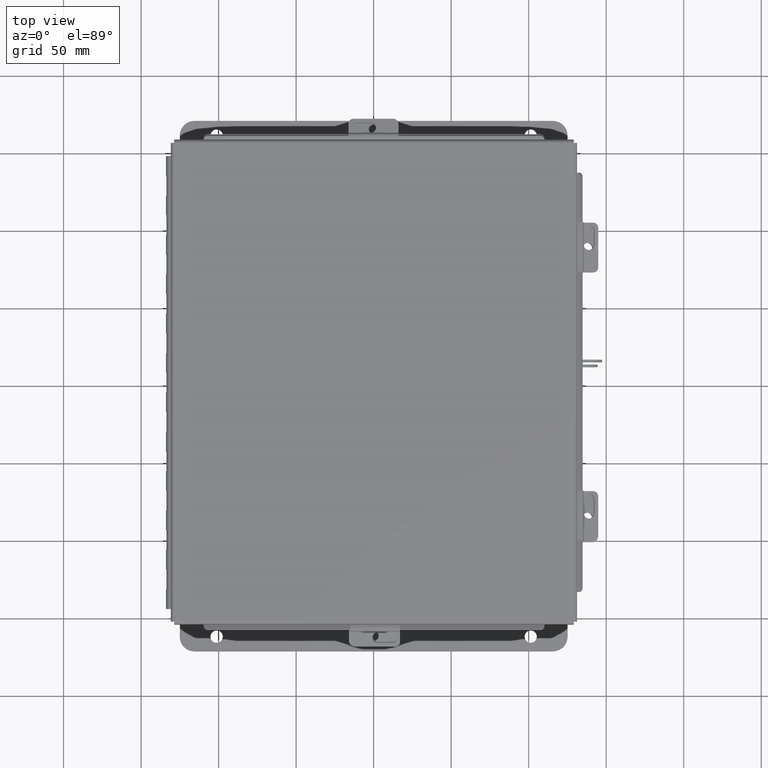
[diagram: clean part render]
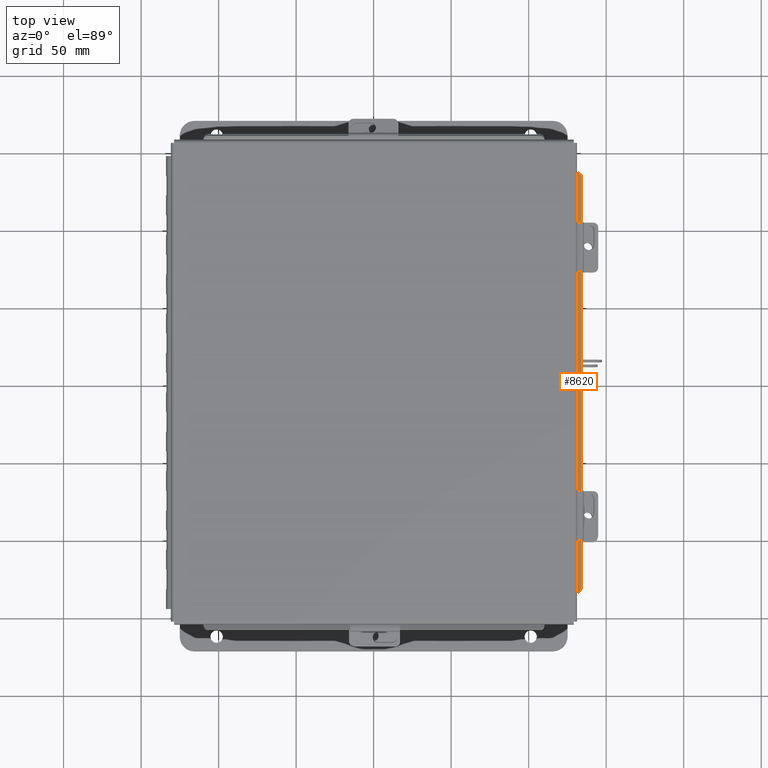
[diagram: same view with one face highlighted and labeled with its STEP entity id]
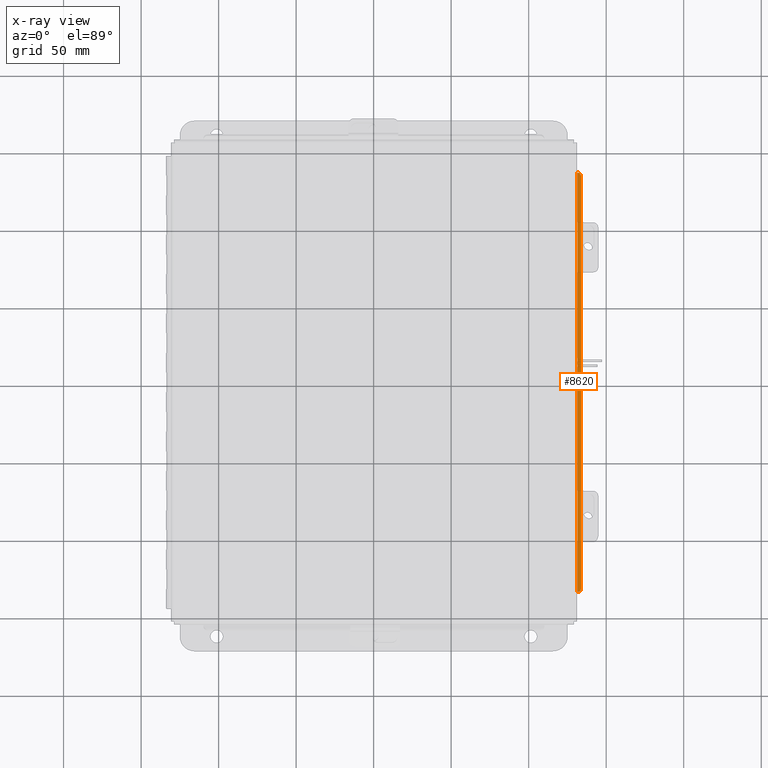
[diagram: x-ray of the same camera — body ghosted, the highlighted face saturated]
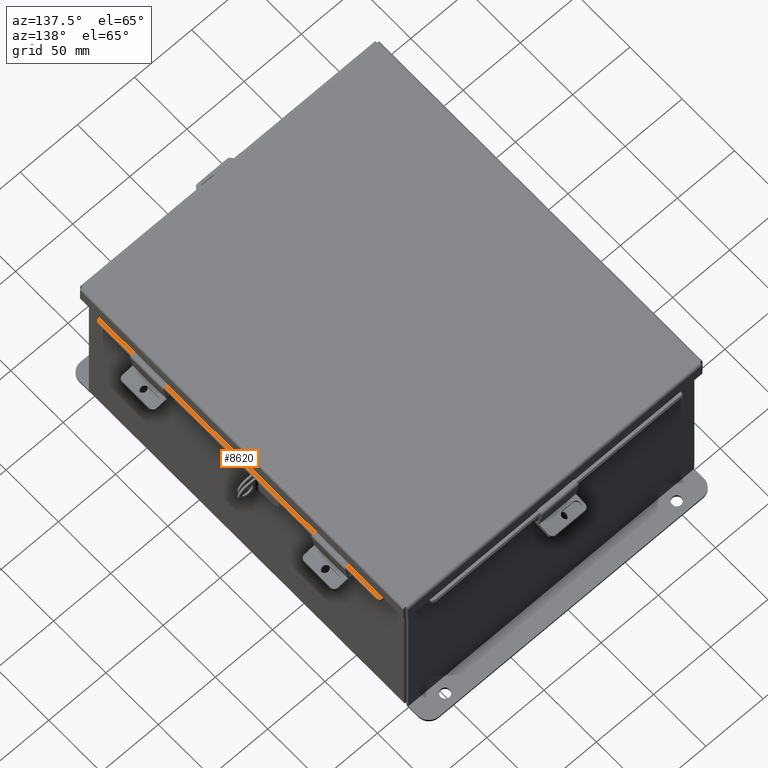
[diagram: same view with one face highlighted and labeled with its STEP entity id]
A machine part, top view. The second image highlights one B-rep face of the part: STEP entity #8620.
The next image is the same camera in x-ray: the body ghosted, the highlighted face saturated — about 0% of this face is hidden behind the body in this view.
A second angle (auxiliary view) of the same face is appended — the face is thin or edge-on in the first view.
In plain terms, the highlighted planar face has unit normal (-0.5, -0, 0.866).
Its self-contained STEP definition (entity closure, byte-faithful):
#984 = DIRECTION ( 'NONE',  ( 0.5000000000000020000, 1.972152263052529500E-031, -0.8660254037844374900 ) ) ;
#996 = EDGE_CURVE ( 'NONE', #9335, #11754, #7486, .T. ) ;
#1140 = EDGE_CURVE ( 'NONE', #15126, #11754, #5172, .T. ) ;
#1484 = DIRECTION ( 'NONE',  ( 0.5000000000000020000, 1.972152263052529500E-031, -0.8660254037844374900 ) ) ;
#1515 = VECTOR ( 'NONE', #16715, 39.37007874015748900 ) ;
#2129 = PLANE ( 'NONE',  #13989 ) ;
#2481 = AXIS2_PLACEMENT_3D ( 'NONE', #9181, #984, #10536 ) ;
#2843 = AXIS2_PLACEMENT_3D ( 'NONE', #9663, #1484, #11008 ) ;
#4133 = VECTOR ( 'NONE', #4542, 39.37007874015748100 ) ;
#4151 = CARTESIAN_POINT ( 'NONE',  ( -5.260706350946112100, 5.224478932188135100, 0.4269920976626969100 ) ) ;
#4230 = FACE_OUTER_BOUND ( 'NONE', #13836, .T. ) ;
#4542 = DIRECTION ( 'NONE',  ( 0.8660254037844374900, -1.232595164407830900E-032, 0.5000000000000020000 ) ) ;
#4658 = ORIENTED_EDGE ( 'NONE', *, *, #12526, .F. ) ;
#5078 = CARTESIAN_POINT ( 'NONE',  ( -5.169750000000002300, -5.324478932188134700, 0.4795057713659400300 ) ) ;
#5172 = LINE ( 'NONE', #12575, #1515 ) ;
#6186 = CARTESIAN_POINT ( 'NONE',  ( -5.169750000000002300, 5.324478932188135600, 0.4795057713659389200 ) ) ;
#6213 = CIRCLE ( 'NONE', #2481, 0.09999999999999986700 ) ;
#6260 = DIRECTION ( 'NONE',  ( -0.8660254037844374900, 1.232595164407830900E-032, -0.5000000000000020000 ) ) ;
#6529 = CARTESIAN_POINT ( 'NONE',  ( -5.174103810567668700, -5.324478932188134700, 0.4769920976626966200 ) ) ;
#6585 = VERTEX_POINT ( 'NONE', #6529 ) ;
#7082 = ORIENTED_EDGE ( 'NONE', *, *, #996, .T. ) ;
#7486 = CIRCLE ( 'NONE', #2843, 0.09999999999999986700 ) ;
#8289 = VERTEX_POINT ( 'NONE', #16484 ) ;
#8620 = ADVANCED_FACE ( 'NONE', ( #4230 ), #2129, .T. ) ;
#8710 = ORIENTED_EDGE ( 'NONE', *, *, #16098, .F. ) ;
#8937 = CARTESIAN_POINT ( 'NONE',  ( -1.500069589632091900, 0.0000000000000000000, 2.598196744131761700 ) ) ;
#9181 = CARTESIAN_POINT ( 'NONE',  ( -5.174103810567668700, -5.224478932188135100, 0.4769920976626966200 ) ) ;
#9296 = VERTEX_POINT ( 'NONE', #12165 ) ;
#9335 = VERTEX_POINT ( 'NONE', #4151 ) ;
#9411 = VECTOR ( 'NONE', #11904, 39.37007874015748100 ) ;
#9609 = DIRECTION ( 'NONE',  ( -2.258600338820354400E-033, -1.000000000000000000, 0.0000000000000000000 ) ) ;
#9663 = CARTESIAN_POINT ( 'NONE',  ( -5.174103810567668700, 5.224478932188135100, 0.4769920976626966200 ) ) ;
#10536 = DIRECTION ( 'NONE',  ( -0.8660254037844370400, 0.0000000000000000000, -0.5000000000000028900 ) ) ;
#11008 = DIRECTION ( 'NONE',  ( -0.8660254037844370400, 0.0000000000000000000, -0.5000000000000028900 ) ) ;
#11636 = EDGE_CURVE ( 'NONE', #6585, #9296, #14576, .T. ) ;
#11754 = VERTEX_POINT ( 'NONE', #15541 ) ;
#11876 = ORIENTED_EDGE ( 'NONE', *, *, #1140, .F. ) ;
#11877 = LINE ( 'NONE', #16423, #15106 ) ;
#11904 = DIRECTION ( 'NONE',  ( -3.274662740781450500E-033, 1.000000000000000000, -1.539219909660675200E-016 ) ) ;
#12165 = CARTESIAN_POINT ( 'NONE',  ( -5.169750000000002300, -5.324478932188134700, 0.4795057713659389200 ) ) ;
#12522 = EDGE_CURVE ( 'NONE', #6585, #8289, #6213, .T. ) ;
#12526 = EDGE_CURVE ( 'NONE', #9296, #15126, #13027, .T. ) ;
#12575 = CARTESIAN_POINT ( 'NONE',  ( -5.260706350946112100, 5.324478932188135600, 0.4269920976626969100 ) ) ;
#12658 = CARTESIAN_POINT ( 'NONE',  ( -5.156250000000001800, -5.324478932188134700, 0.4873000000000000100 ) ) ;
#13027 = LINE ( 'NONE', #5078, #9411 ) ;
#13836 = EDGE_LOOP ( 'NONE', ( #16865, #15255, #8710, #7082, #11876, #4658 ) ) ;
#13989 = AXIS2_PLACEMENT_3D ( 'NONE', #8937, #14432, #6260 ) ;
#14432 = DIRECTION ( 'NONE',  ( 0.5000000000000020000, 1.972152263052529500E-031, -0.8660254037844374900 ) ) ;
#14576 = LINE ( 'NONE', #12658, #4133 ) ;
#15106 = VECTOR ( 'NONE', #9609, 39.37007874015748100 ) ;
#15126 = VERTEX_POINT ( 'NONE', #6186 ) ;
#15255 = ORIENTED_EDGE ( 'NONE', *, *, #12522, .T. ) ;
#15541 = CARTESIAN_POINT ( 'NONE',  ( -5.174103810567669500, 5.324478932188136500, 0.4769920976626966200 ) ) ;
#16098 = EDGE_CURVE ( 'NONE', #9335, #8289, #11877, .T. ) ;
#16423 = CARTESIAN_POINT ( 'NONE',  ( -5.260706350946112100, -5.324478932188134700, 0.4269920976626969100 ) ) ;
#16484 = CARTESIAN_POINT ( 'NONE',  ( -5.260706350946112100, -5.224478932188135100, 0.4269920976626969100 ) ) ;
#16715 = DIRECTION ( 'NONE',  ( -0.8660254037844362700, -9.059668427480828900E-015, -0.5000000000000037700 ) ) ;
#16865 = ORIENTED_EDGE ( 'NONE', *, *, #11636, .F. ) ;